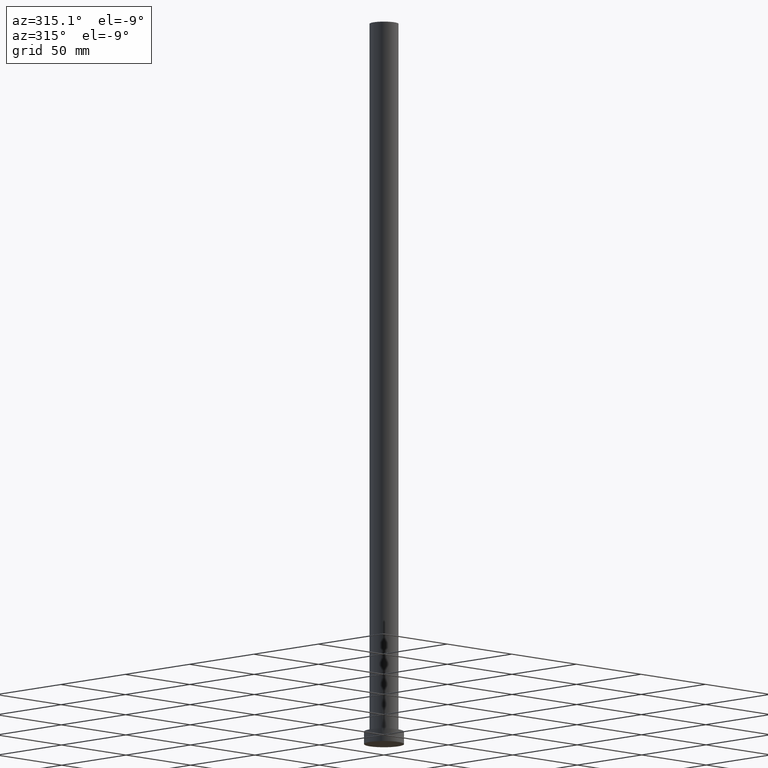
[diagram: clean part render]
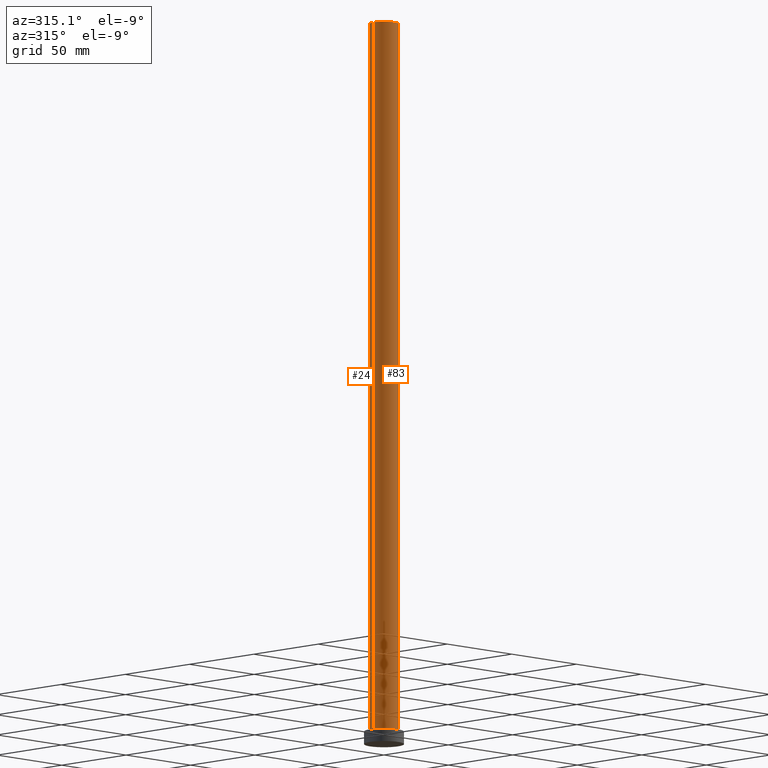
[diagram: same view with one multi-face feature highlighted, each face labeled with its STEP entity id]
A machine part, auxiliary view. The highlighted faces form ONE feature: a constant-radius fillet chain: 2 tangent blend faces with common blend radius 8 mm. The faces share edges in the B-rep.
Their STEP definitions:
[1] entity #83 (Cylinder):
#4 = DIRECTION ( 'NONE',  ( 1.000000000000000000, 0.000000000000000000, 0.000000000000000000 ) ) ;
#16 = AXIS2_PLACEMENT_3D ( 'NONE', #42, #82, #118 ) ;
#20 = CIRCLE ( 'NONE', #160, 8.000000000000000000 ) ;
#26 = DIRECTION ( 'NONE',  ( -1.000000000000000000, 0.000000000000000000, 0.000000000000000000 ) ) ;
#35 = LINE ( 'NONE', #113, #57 ) ;
#40 = EDGE_CURVE ( 'NONE', #69, #189, #35, .T. ) ;
#42 = CARTESIAN_POINT ( 'NONE',  ( 0.000000000000000000, 0.000000000000000000, 7.000000000000000000 ) ) ;
#44 = CARTESIAN_POINT ( 'NONE',  ( 8.000000000000000000, 9.797174393178825657E-16, 400.0000000000000000 ) ) ;
#57 = VECTOR ( 'NONE', #196, 1000.000000000000000 ) ;
#69 = VERTEX_POINT ( 'NONE', #90 ) ;
#72 = ORIENTED_EDGE ( 'NONE', *, *, #40, .T. ) ;
#81 = ORIENTED_EDGE ( 'NONE', *, *, #207, .F. ) ;
#82 = DIRECTION ( 'NONE',  ( 0.000000000000000000, 0.000000000000000000, 1.000000000000000000 ) ) ;
#83 = ADVANCED_FACE ( 'NONE', ( #162 ), #243, .T. ) ;
#90 = CARTESIAN_POINT ( 'NONE',  ( -8.000000000000000000, 0.000000000000000000, 400.0000000000000000 ) ) ;
#99 = LINE ( 'NONE', #197, #178 ) ;
#113 = CARTESIAN_POINT ( 'NONE',  ( -8.000000000000000000, 0.000000000000000000, 400.0000000000000000 ) ) ;
#118 = DIRECTION ( 'NONE',  ( 1.000000000000000000, 0.000000000000000000, 0.000000000000000000 ) ) ;
#121 = CARTESIAN_POINT ( 'NONE',  ( 0.000000000000000000, 0.000000000000000000, 400.0000000000000000 ) ) ;
#122 = CARTESIAN_POINT ( 'NONE',  ( 8.000000000000000000, 9.797174393178825657E-16, 7.000000000000000000 ) ) ;
#125 = VERTEX_POINT ( 'NONE', #122 ) ;
#134 = EDGE_CURVE ( 'NONE', #250, #125, #99, .T. ) ;
#154 = ORIENTED_EDGE ( 'NONE', *, *, #237, .T. ) ;
#157 = EDGE_LOOP ( 'NONE', ( #192, #81, #72, #154 ) ) ;
#159 = CARTESIAN_POINT ( 'NONE',  ( -8.000000000000000000, 0.000000000000000000, 7.000000000000000000 ) ) ;
#160 = AXIS2_PLACEMENT_3D ( 'NONE', #165, #161, #4 ) ;
#161 = DIRECTION ( 'NONE',  ( 0.000000000000000000, 0.000000000000000000, 1.000000000000000000 ) ) ;
#162 = FACE_OUTER_BOUND ( 'NONE', #157, .T. ) ;
#165 = CARTESIAN_POINT ( 'NONE',  ( 0.000000000000000000, 0.000000000000000000, 400.0000000000000000 ) ) ;
#173 = DIRECTION ( 'NONE',  ( -0.000000000000000000, -0.000000000000000000, -1.000000000000000000 ) ) ;
#174 = AXIS2_PLACEMENT_3D ( 'NONE', #121, #205, #26 ) ;
#178 = VECTOR ( 'NONE', #173, 1000.000000000000000 ) ;
#189 = VERTEX_POINT ( 'NONE', #159 ) ;
#192 = ORIENTED_EDGE ( 'NONE', *, *, #134, .F. ) ;
#196 = DIRECTION ( 'NONE',  ( -0.000000000000000000, -0.000000000000000000, -1.000000000000000000 ) ) ;
#197 = CARTESIAN_POINT ( 'NONE',  ( 8.000000000000000000, 9.797174393178825657E-16, 400.0000000000000000 ) ) ;
#205 = DIRECTION ( 'NONE',  ( -0.000000000000000000, -0.000000000000000000, -1.000000000000000000 ) ) ;
#206 = CIRCLE ( 'NONE', #16, 8.000000000000000000 ) ;
#207 = EDGE_CURVE ( 'NONE', #69, #250, #20, .T. ) ;
#237 = EDGE_CURVE ( 'NONE', #189, #125, #206, .T. ) ;
#243 = CYLINDRICAL_SURFACE ( 'NONE', #174, 8.000000000000000000 ) ;
#250 = VERTEX_POINT ( 'NONE', #44 ) ;
[2] entity #24 (Cylinder):
#9 = DIRECTION ( 'NONE',  ( 1.000000000000000000, 0.000000000000000000, 0.000000000000000000 ) ) ;
#24 = ADVANCED_FACE ( 'NONE', ( #170 ), #208, .T. ) ;
#27 = CARTESIAN_POINT ( 'NONE',  ( 0.000000000000000000, 0.000000000000000000, 400.0000000000000000 ) ) ;
#33 = EDGE_CURVE ( 'NONE', #250, #69, #198, .T. ) ;
#35 = LINE ( 'NONE', #113, #57 ) ;
#40 = EDGE_CURVE ( 'NONE', #69, #189, #35, .T. ) ;
#44 = CARTESIAN_POINT ( 'NONE',  ( 8.000000000000000000, 9.797174393178825657E-16, 400.0000000000000000 ) ) ;
#46 = EDGE_LOOP ( 'NONE', ( #148, #108, #71, #149 ) ) ;
#57 = VECTOR ( 'NONE', #196, 1000.000000000000000 ) ;
#60 = AXIS2_PLACEMENT_3D ( 'NONE', #27, #251, #127 ) ;
#69 = VERTEX_POINT ( 'NONE', #90 ) ;
#71 = ORIENTED_EDGE ( 'NONE', *, *, #104, .T. ) ;
#90 = CARTESIAN_POINT ( 'NONE',  ( -8.000000000000000000, 0.000000000000000000, 400.0000000000000000 ) ) ;
#99 = LINE ( 'NONE', #197, #178 ) ;
#104 = EDGE_CURVE ( 'NONE', #125, #189, #200, .T. ) ;
#108 = ORIENTED_EDGE ( 'NONE', *, *, #134, .T. ) ;
#110 = DIRECTION ( 'NONE',  ( 1.000000000000000000, 0.000000000000000000, 0.000000000000000000 ) ) ;
#111 = AXIS2_PLACEMENT_3D ( 'NONE', #145, #245, #9 ) ;
#113 = CARTESIAN_POINT ( 'NONE',  ( -8.000000000000000000, 0.000000000000000000, 400.0000000000000000 ) ) ;
#114 = AXIS2_PLACEMENT_3D ( 'NONE', #187, #217, #110 ) ;
#122 = CARTESIAN_POINT ( 'NONE',  ( 8.000000000000000000, 9.797174393178825657E-16, 7.000000000000000000 ) ) ;
#125 = VERTEX_POINT ( 'NONE', #122 ) ;
#127 = DIRECTION ( 'NONE',  ( -1.000000000000000000, 0.000000000000000000, 0.000000000000000000 ) ) ;
#134 = EDGE_CURVE ( 'NONE', #250, #125, #99, .T. ) ;
#145 = CARTESIAN_POINT ( 'NONE',  ( 0.000000000000000000, 0.000000000000000000, 7.000000000000000000 ) ) ;
#148 = ORIENTED_EDGE ( 'NONE', *, *, #33, .F. ) ;
#149 = ORIENTED_EDGE ( 'NONE', *, *, #40, .F. ) ;
#159 = CARTESIAN_POINT ( 'NONE',  ( -8.000000000000000000, 0.000000000000000000, 7.000000000000000000 ) ) ;
#170 = FACE_OUTER_BOUND ( 'NONE', #46, .T. ) ;
#173 = DIRECTION ( 'NONE',  ( -0.000000000000000000, -0.000000000000000000, -1.000000000000000000 ) ) ;
#178 = VECTOR ( 'NONE', #173, 1000.000000000000000 ) ;
#187 = CARTESIAN_POINT ( 'NONE',  ( 0.000000000000000000, 0.000000000000000000, 400.0000000000000000 ) ) ;
#189 = VERTEX_POINT ( 'NONE', #159 ) ;
#196 = DIRECTION ( 'NONE',  ( -0.000000000000000000, -0.000000000000000000, -1.000000000000000000 ) ) ;
#197 = CARTESIAN_POINT ( 'NONE',  ( 8.000000000000000000, 9.797174393178825657E-16, 400.0000000000000000 ) ) ;
#198 = CIRCLE ( 'NONE', #114, 8.000000000000000000 ) ;
#200 = CIRCLE ( 'NONE', #111, 8.000000000000000000 ) ;
#208 = CYLINDRICAL_SURFACE ( 'NONE', #60, 8.000000000000000000 ) ;
#217 = DIRECTION ( 'NONE',  ( 0.000000000000000000, 0.000000000000000000, 1.000000000000000000 ) ) ;
#245 = DIRECTION ( 'NONE',  ( 0.000000000000000000, 0.000000000000000000, 1.000000000000000000 ) ) ;
#250 = VERTEX_POINT ( 'NONE', #44 ) ;
#251 = DIRECTION ( 'NONE',  ( -0.000000000000000000, -0.000000000000000000, -1.000000000000000000 ) ) ;